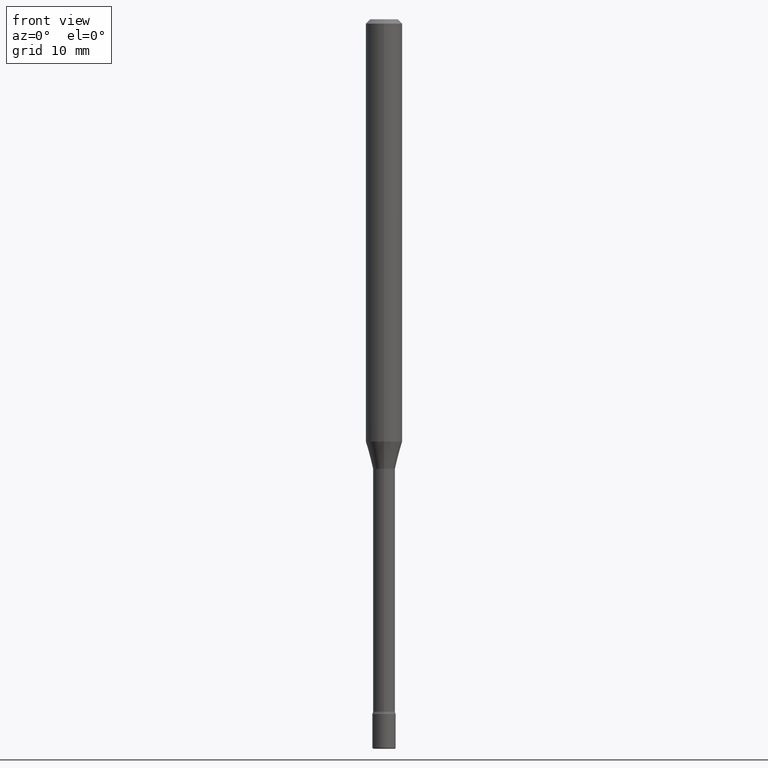
[diagram: clean part render]
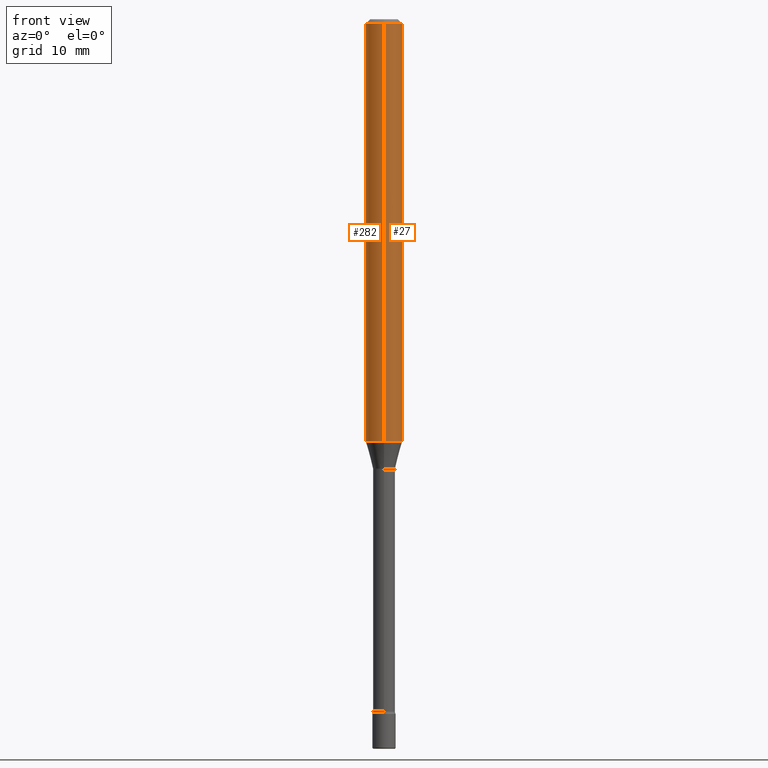
[diagram: same view with one multi-face feature highlighted, each face labeled with its STEP entity id]
A machine part, front view. The highlighted faces form ONE feature: a constant-radius fillet chain: 2 tangent blend faces with common blend radius 1.5875 mm. The faces share edges in the B-rep.
Their STEP definitions:
[1] entity #282 (Cylinder):
#14 = ORIENTED_EDGE ( 'NONE', *, *, #81, .T. ) ;
#36 = VERTEX_POINT ( 'NONE', #95 ) ;
#48 = CARTESIAN_POINT ( 'NONE',  ( -4.364351673553565651E-16, -0.06250000000000509315, -1.447071934891535072 ) ) ;
#74 = ORIENTED_EDGE ( 'NONE', *, *, #350, .T. ) ;
#81 = EDGE_CURVE ( 'NONE', #416, #499, #502, .T. ) ;
#91 = ORIENTED_EDGE ( 'NONE', *, *, #463, .F. ) ;
#95 = CARTESIAN_POINT ( 'NONE',  ( 4.440892098500982135E-16, 0.06249999999999995143, -0.01500000000000024578 ) ) ;
#142 = FACE_OUTER_BOUND ( 'NONE', #287, .T. ) ;
#144 = DIRECTION ( 'NONE',  ( -2.445371158952634318E-29, 3.491621175237824120E-15, 1.000000000000000000 ) ) ;
#172 = CARTESIAN_POINT ( 'NONE',  ( 3.538627974513544644E-29, -5.052627009959655256E-15, -1.447071934891535294 ) ) ;
#179 = CARTESIAN_POINT ( 'NONE',  ( -4.364351673553916201E-16, -0.06250000000000000000, 6.962997223436100461E-16 ) ) ;
#189 = VECTOR ( 'NONE', #449, 39.37007874015748143 ) ;
#198 = CARTESIAN_POINT ( 'NONE',  ( 3.668056738428958326E-31, -5.237431762856745967E-17, -0.01500000000000002720 ) ) ;
#225 = CYLINDRICAL_SURFACE ( 'NONE', #556, 0.06250000000000000000 ) ;
#254 = AXIS2_PLACEMENT_3D ( 'NONE', #172, #441, #337 ) ;
#272 = CARTESIAN_POINT ( 'NONE',  ( 4.440892098500976219E-16, 0.06249999999999491379, -1.447071934891535516 ) ) ;
#277 = DIRECTION ( 'NONE',  ( -6.982962677686265922E-15, -1.000000000000000000, 3.491621175237823726E-15 ) ) ;
#282 = ADVANCED_FACE ( 'NONE', ( #142 ), #225, .T. ) ;
#287 = EDGE_LOOP ( 'NONE', ( #516, #14, #74, #91 ) ) ;
#309 = CARTESIAN_POINT ( 'NONE',  ( -1.169113584055446105E-44, 1.669184350826100908E-30, 4.780733988912460139E-16 ) ) ;
#337 = DIRECTION ( 'NONE',  ( -6.982962677686265922E-15, -1.000000000000000000, 4.370956789862821150E-15 ) ) ;
#339 = EDGE_CURVE ( 'NONE', #416, #36, #541, .T. ) ;
#350 = EDGE_CURVE ( 'NONE', #499, #506, #409, .T. ) ;
#376 = DIRECTION ( 'NONE',  ( -2.445371158952634318E-29, 3.491621175237824120E-15, 1.000000000000000000 ) ) ;
#402 = CIRCLE ( 'NONE', #546, 0.06250000000000000000 ) ;
#409 = LINE ( 'NONE', #179, #189 ) ;
#412 = DIRECTION ( 'NONE',  ( -2.445371158952634038E-29, 3.491621175237824120E-15, 1.000000000000000000 ) ) ;
#416 = VERTEX_POINT ( 'NONE', #272 ) ;
#441 = DIRECTION ( 'NONE',  ( -2.445371158952634318E-29, 3.491621175237824120E-15, 1.000000000000000000 ) ) ;
#449 = DIRECTION ( 'NONE',  ( -2.445371158952634038E-29, 3.491621175237824120E-15, 1.000000000000000000 ) ) ;
#463 = EDGE_CURVE ( 'NONE', #36, #506, #402, .T. ) ;
#492 = CARTESIAN_POINT ( 'NONE',  ( 4.440892098500625669E-16, 0.06250000000000000000, 2.598470754388820311E-16 ) ) ;
#499 = VERTEX_POINT ( 'NONE', #48 ) ;
#502 = CIRCLE ( 'NONE', #254, 0.06250000000000000000 ) ;
#506 = VERTEX_POINT ( 'NONE', #531 ) ;
#516 = ORIENTED_EDGE ( 'NONE', *, *, #339, .F. ) ;
#531 = CARTESIAN_POINT ( 'NONE',  ( -4.364351673553912750E-16, -0.06250000000000005551, -0.01499999999999981036 ) ) ;
#541 = LINE ( 'NONE', #492, #567 ) ;
#546 = AXIS2_PLACEMENT_3D ( 'NONE', #198, #376, #563 ) ;
#556 = AXIS2_PLACEMENT_3D ( 'NONE', #309, #144, #277 ) ;
#563 = DIRECTION ( 'NONE',  ( -6.982962677686265922E-15, -1.000000000000000000, 3.483106191921935554E-15 ) ) ;
#567 = VECTOR ( 'NONE', #412, 39.37007874015748143 ) ;
[2] entity #27 (Cylinder):
#27 = ADVANCED_FACE ( 'NONE', ( #569 ), #87, .T. ) ;
#32 = DIRECTION ( 'NONE',  ( -2.445371158952634318E-29, 3.491621175237824120E-15, 1.000000000000000000 ) ) ;
#34 = DIRECTION ( 'NONE',  ( -6.982962677686265922E-15, -1.000000000000000000, 4.370956789862821150E-15 ) ) ;
#36 = VERTEX_POINT ( 'NONE', #95 ) ;
#48 = CARTESIAN_POINT ( 'NONE',  ( -4.364351673553565651E-16, -0.06250000000000509315, -1.447071934891535072 ) ) ;
#58 = AXIS2_PLACEMENT_3D ( 'NONE', #550, #32, #34 ) ;
#79 = ORIENTED_EDGE ( 'NONE', *, *, #350, .F. ) ;
#87 = CYLINDRICAL_SURFACE ( 'NONE', #555, 0.06250000000000000000 ) ;
#95 = CARTESIAN_POINT ( 'NONE',  ( 4.440892098500982135E-16, 0.06249999999999995143, -0.01500000000000024578 ) ) ;
#153 = DIRECTION ( 'NONE',  ( -6.982962677686265922E-15, -1.000000000000000000, 3.483106191921935554E-15 ) ) ;
#179 = CARTESIAN_POINT ( 'NONE',  ( -4.364351673553916201E-16, -0.06250000000000000000, 6.962997223436100461E-16 ) ) ;
#184 = DIRECTION ( 'NONE',  ( -2.445371158952634318E-29, 3.491621175237824120E-15, 1.000000000000000000 ) ) ;
#189 = VECTOR ( 'NONE', #449, 39.37007874015748143 ) ;
#223 = EDGE_CURVE ( 'NONE', #506, #36, #565, .T. ) ;
#268 = CARTESIAN_POINT ( 'NONE',  ( -1.169113584055446105E-44, 1.669184350826100908E-30, 4.780733988912460139E-16 ) ) ;
#272 = CARTESIAN_POINT ( 'NONE',  ( 4.440892098500976219E-16, 0.06249999999999491379, -1.447071934891535516 ) ) ;
#293 = DIRECTION ( 'NONE',  ( -2.445371158952634318E-29, 3.491621175237824120E-15, 1.000000000000000000 ) ) ;
#302 = DIRECTION ( 'NONE',  ( -6.982962677686265922E-15, -1.000000000000000000, 3.491621175237823726E-15 ) ) ;
#339 = EDGE_CURVE ( 'NONE', #416, #36, #541, .T. ) ;
#344 = CIRCLE ( 'NONE', #58, 0.06250000000000000000 ) ;
#350 = EDGE_CURVE ( 'NONE', #499, #506, #409, .T. ) ;
#373 = ORIENTED_EDGE ( 'NONE', *, *, #461, .T. ) ;
#409 = LINE ( 'NONE', #179, #189 ) ;
#412 = DIRECTION ( 'NONE',  ( -2.445371158952634038E-29, 3.491621175237824120E-15, 1.000000000000000000 ) ) ;
#416 = VERTEX_POINT ( 'NONE', #272 ) ;
#449 = DIRECTION ( 'NONE',  ( -2.445371158952634038E-29, 3.491621175237824120E-15, 1.000000000000000000 ) ) ;
#456 = AXIS2_PLACEMENT_3D ( 'NONE', #547, #184, #153 ) ;
#461 = EDGE_CURVE ( 'NONE', #499, #416, #344, .T. ) ;
#479 = EDGE_LOOP ( 'NONE', ( #373, #490, #554, #79 ) ) ;
#490 = ORIENTED_EDGE ( 'NONE', *, *, #339, .T. ) ;
#492 = CARTESIAN_POINT ( 'NONE',  ( 4.440892098500625669E-16, 0.06250000000000000000, 2.598470754388820311E-16 ) ) ;
#499 = VERTEX_POINT ( 'NONE', #48 ) ;
#506 = VERTEX_POINT ( 'NONE', #531 ) ;
#531 = CARTESIAN_POINT ( 'NONE',  ( -4.364351673553912750E-16, -0.06250000000000005551, -0.01499999999999981036 ) ) ;
#541 = LINE ( 'NONE', #492, #567 ) ;
#547 = CARTESIAN_POINT ( 'NONE',  ( 3.668056738428958326E-31, -5.237431762856745967E-17, -0.01500000000000002720 ) ) ;
#550 = CARTESIAN_POINT ( 'NONE',  ( 3.538627974513544644E-29, -5.052627009959655256E-15, -1.447071934891535294 ) ) ;
#554 = ORIENTED_EDGE ( 'NONE', *, *, #223, .F. ) ;
#555 = AXIS2_PLACEMENT_3D ( 'NONE', #268, #293, #302 ) ;
#565 = CIRCLE ( 'NONE', #456, 0.06250000000000000000 ) ;
#567 = VECTOR ( 'NONE', #412, 39.37007874015748143 ) ;
#569 = FACE_OUTER_BOUND ( 'NONE', #479, .T. ) ;